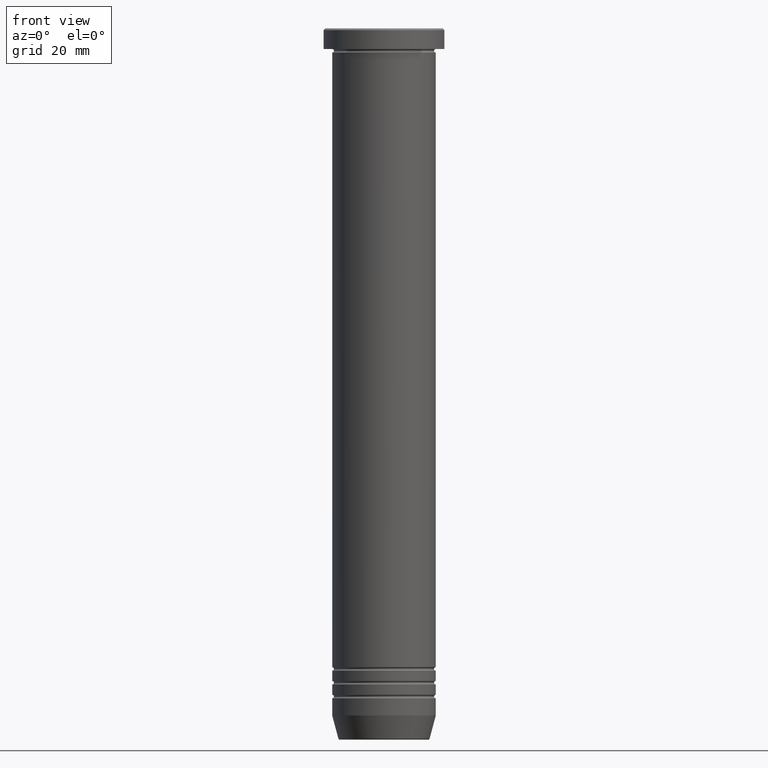
[diagram: clean part render]
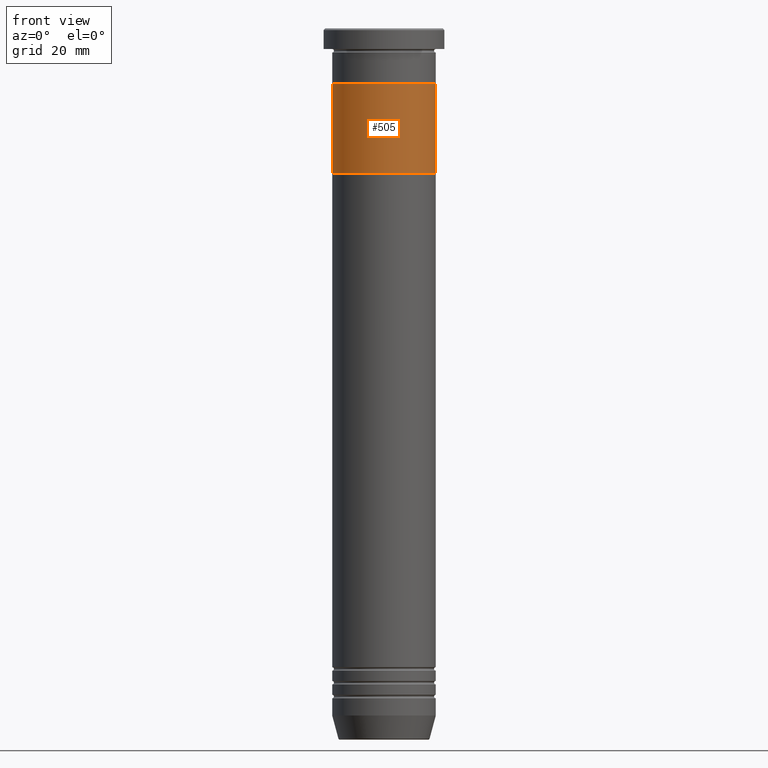
[diagram: same view with one face highlighted and labeled with its STEP entity id]
A machine part, front view. The second image highlights one B-rep face of the part: STEP entity #505.
In plain terms, the highlighted cylindrical surface (partial cylindrical patch) has radius 15 mm, axis along (-0, -0, 1).
Its self-contained STEP definition (entity closure, byte-faithful):
#1 = CYLINDRICAL_SURFACE ( 'NONE', #90, 15.00000000000000000 ) ;
#12 = VERTEX_POINT ( 'NONE', #917 ) ;
#19 = ORIENTED_EDGE ( 'NONE', *, *, #1127, .F. ) ;
#22 = DIRECTION ( 'NONE',  ( 0.000000000000000000, 0.000000000000000000, -1.000000000000000000 ) ) ;
#37 = LINE ( 'NONE', #228, #728 ) ;
#90 = AXIS2_PLACEMENT_3D ( 'NONE', #784, #428, #362 ) ;
#125 = ORIENTED_EDGE ( 'NONE', *, *, #162, .F. ) ;
#143 = DIRECTION ( 'NONE',  ( -0.000000000000000000, -0.000000000000000000, 1.000000000000000000 ) ) ;
#160 = EDGE_CURVE ( 'NONE', #12, #685, #242, .T. ) ;
#162 = EDGE_CURVE ( 'NONE', #925, #685, #251, .T. ) ;
#218 = ORIENTED_EDGE ( 'NONE', *, *, #160, .T. ) ;
#228 = CARTESIAN_POINT ( 'NONE',  ( 15.00000000000000000, 0.000000000000000000, -41.99999999999999289 ) ) ;
#237 = CARTESIAN_POINT ( 'NONE',  ( 0.000000000000000000, 0.000000000000000000, -41.99999999999999289 ) ) ;
#242 = CIRCLE ( 'NONE', #1057, 15.00000000000000000 ) ;
#251 = LINE ( 'NONE', #867, #475 ) ;
#362 = DIRECTION ( 'NONE',  ( 1.000000000000000000, 0.000000000000000000, 0.000000000000000000 ) ) ;
#400 = VERTEX_POINT ( 'NONE', #468 ) ;
#402 = AXIS2_PLACEMENT_3D ( 'NONE', #237, #22, #1014 ) ;
#417 = CARTESIAN_POINT ( 'NONE',  ( 0.000000000000000000, 0.000000000000000000, -16.00000000000000000 ) ) ;
#428 = DIRECTION ( 'NONE',  ( -0.000000000000000000, -0.000000000000000000, 1.000000000000000000 ) ) ;
#468 = CARTESIAN_POINT ( 'NONE',  ( 15.00000000000000000, 0.000000000000000000, -41.99999999999999289 ) ) ;
#475 = VECTOR ( 'NONE', #598, 1000.000000000000000 ) ;
#485 = EDGE_LOOP ( 'NONE', ( #125, #19, #812, #218 ) ) ;
#505 = ADVANCED_FACE ( 'NONE', ( #881 ), #1, .T. ) ;
#524 = CARTESIAN_POINT ( 'NONE',  ( -15.00000000000000000, 1.836970198721029194E-15, -41.99999999999999289 ) ) ;
#598 = DIRECTION ( 'NONE',  ( -0.000000000000000000, -0.000000000000000000, 1.000000000000000000 ) ) ;
#684 = DIRECTION ( 'NONE',  ( 0.000000000000000000, 0.000000000000000000, -1.000000000000000000 ) ) ;
#685 = VERTEX_POINT ( 'NONE', #821 ) ;
#728 = VECTOR ( 'NONE', #143, 1000.000000000000000 ) ;
#767 = DIRECTION ( 'NONE',  ( -1.000000000000000000, 0.000000000000000000, 0.000000000000000000 ) ) ;
#784 = CARTESIAN_POINT ( 'NONE',  ( 0.000000000000000000, 0.000000000000000000, -41.99999999999999289 ) ) ;
#812 = ORIENTED_EDGE ( 'NONE', *, *, #1132, .T. ) ;
#821 = CARTESIAN_POINT ( 'NONE',  ( -15.00000000000000000, 1.836970198721029194E-15, -16.00000000000000000 ) ) ;
#867 = CARTESIAN_POINT ( 'NONE',  ( -15.00000000000000000, 1.836970198721029194E-15, -41.99999999999999289 ) ) ;
#881 = FACE_OUTER_BOUND ( 'NONE', #485, .T. ) ;
#909 = CIRCLE ( 'NONE', #402, 15.00000000000000000 ) ;
#917 = CARTESIAN_POINT ( 'NONE',  ( 15.00000000000000000, 0.000000000000000000, -16.00000000000000000 ) ) ;
#925 = VERTEX_POINT ( 'NONE', #524 ) ;
#1014 = DIRECTION ( 'NONE',  ( -1.000000000000000000, 0.000000000000000000, 0.000000000000000000 ) ) ;
#1057 = AXIS2_PLACEMENT_3D ( 'NONE', #417, #684, #767 ) ;
#1127 = EDGE_CURVE ( 'NONE', #400, #925, #909, .T. ) ;
#1132 = EDGE_CURVE ( 'NONE', #400, #12, #37, .T. ) ;